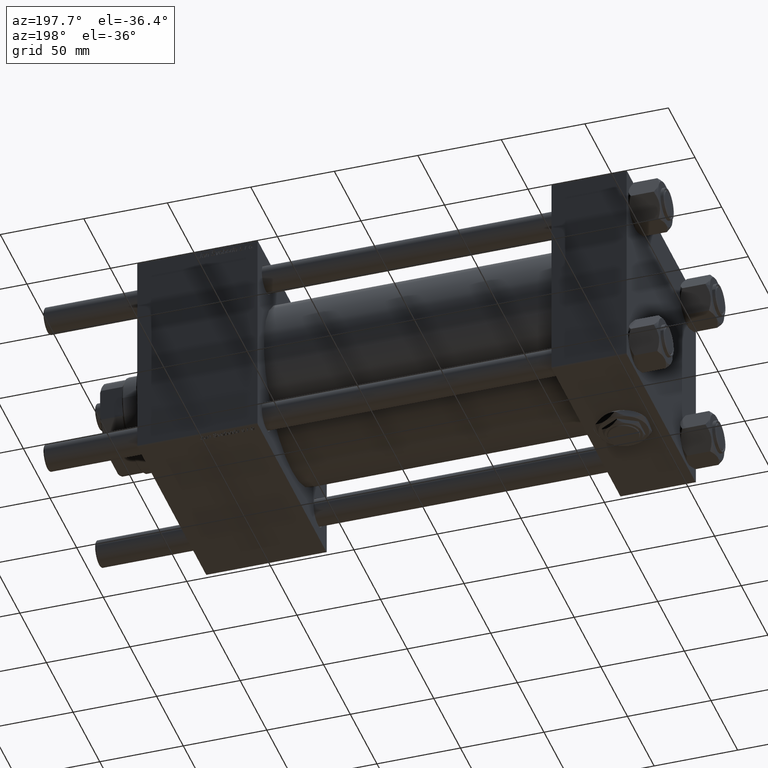
[diagram: clean part render]
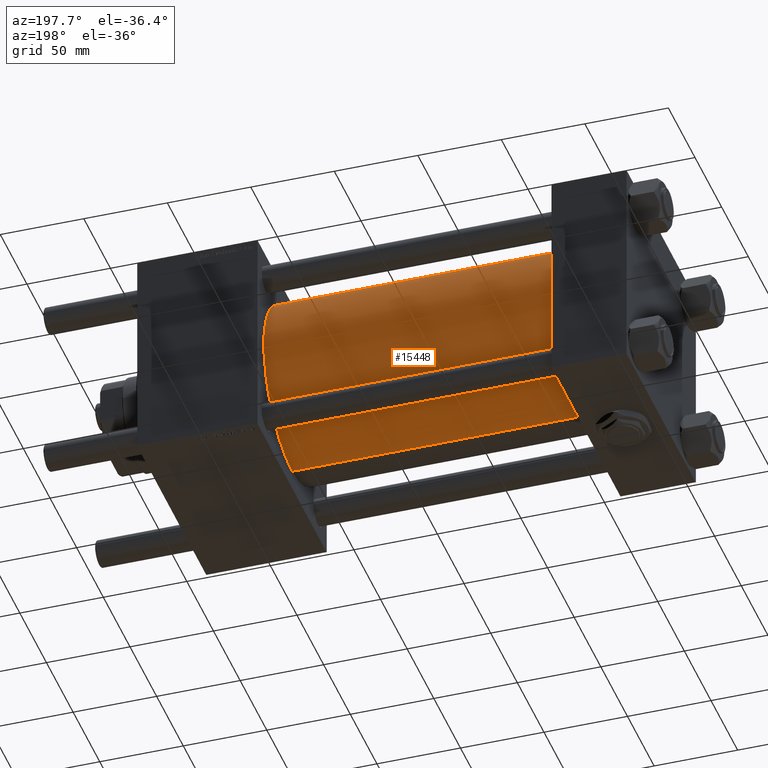
[diagram: same view with one face highlighted and labeled with its STEP entity id]
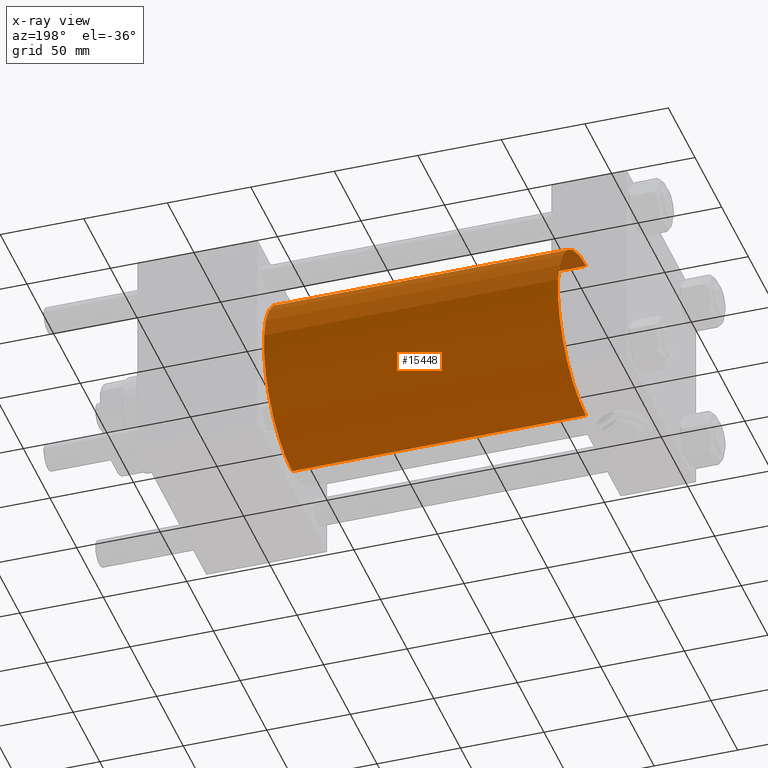
[diagram: x-ray of the same camera — body ghosted, the highlighted face saturated]
A machine part, auxiliary view. The second image highlights one B-rep face of the part: STEP entity #15448.
The next image is the same camera in x-ray: the body ghosted, the highlighted face saturated — about 1% of this face is hidden behind the body in this view.
In plain terms, the highlighted cylindrical surface (partial cylindrical patch) has radius 53 mm, axis along (-1, -0, -0).
Its self-contained STEP definition (entity closure, byte-faithful):
#6232 = AXIS2_PLACEMENT_3D ( 'NONE', #45738, #21503, #39763 ) ;
#8591 = VERTEX_POINT ( 'NONE', #49060 ) ;
#11947 = CIRCLE ( 'NONE', #6232, 53.00000000000000711 ) ;
#13223 = ORIENTED_EDGE ( 'NONE', *, *, #46387, .T. ) ;
#14535 = ORIENTED_EDGE ( 'NONE', *, *, #47569, .F. ) ;
#14728 = CARTESIAN_POINT ( 'NONE',  ( 220.9999999999999716, 3.888542821515762466E-15, -53.00000000000000711 ) ) ;
#15302 = DIRECTION ( 'NONE',  ( -1.000000000000000000, -0.000000000000000000, -0.000000000000000000 ) ) ;
#15388 = DIRECTION ( 'NONE',  ( 1.000000000000000000, -0.000000000000000000, 0.000000000000000000 ) ) ;
#15448 = ADVANCED_FACE ( 'NONE', ( #44872 ), #26597, .T. ) ;
#17641 = DIRECTION ( 'NONE',  ( -1.000000000000000000, -0.000000000000000000, -0.000000000000000000 ) ) ;
#19024 = EDGE_LOOP ( 'NONE', ( #46893, #13223, #51595, #14535 ) ) ;
#20644 = LINE ( 'NONE', #14728, #51549 ) ;
#20885 = CARTESIAN_POINT ( 'NONE',  ( 220.9999999999999716, -2.602085213965210642E-15, 53.00000000000000711 ) ) ;
#21503 = DIRECTION ( 'NONE',  ( 1.000000000000000000, 0.000000000000000000, 0.000000000000000000 ) ) ;
#22423 = DIRECTION ( 'NONE',  ( 0.000000000000000000, 0.000000000000000000, 1.000000000000000000 ) ) ;
#24000 = CARTESIAN_POINT ( 'NONE',  ( 44.99999999999998579, 3.888542821515762466E-15, -53.00000000000000711 ) ) ;
#24636 = DIRECTION ( 'NONE',  ( 0.000000000000000000, 0.000000000000000000, 1.000000000000000000 ) ) ;
#26597 = CYLINDRICAL_SURFACE ( 'NONE', #34576, 53.00000000000000711 ) ;
#30521 = EDGE_CURVE ( 'NONE', #45872, #8591, #11947, .T. ) ;
#34576 = AXIS2_PLACEMENT_3D ( 'NONE', #58654, #17641, #22423 ) ;
#35535 = DIRECTION ( 'NONE',  ( -1.000000000000000000, -0.000000000000000000, -0.000000000000000000 ) ) ;
#35614 = CARTESIAN_POINT ( 'NONE',  ( 220.9999999999999716, 3.888542821515762466E-15, -53.00000000000000711 ) ) ;
#36101 = AXIS2_PLACEMENT_3D ( 'NONE', #56682, #15388, #24636 ) ;
#39763 = DIRECTION ( 'NONE',  ( 0.000000000000000000, 0.000000000000000000, -1.000000000000000000 ) ) ;
#42207 = EDGE_CURVE ( 'NONE', #43410, #51243, #50470, .T. ) ;
#43410 = VERTEX_POINT ( 'NONE', #24000 ) ;
#44872 = FACE_OUTER_BOUND ( 'NONE', #19024, .T. ) ;
#45098 = CARTESIAN_POINT ( 'NONE',  ( 44.99999999999998579, -2.602085213965210642E-15, 53.00000000000000711 ) ) ;
#45738 = CARTESIAN_POINT ( 'NONE',  ( 220.9999999999999716, -2.602085213965210642E-15, 0.000000000000000000 ) ) ;
#45872 = VERTEX_POINT ( 'NONE', #35614 ) ;
#46387 = EDGE_CURVE ( 'NONE', #45872, #43410, #20644, .T. ) ;
#46893 = ORIENTED_EDGE ( 'NONE', *, *, #30521, .F. ) ;
#47569 = EDGE_CURVE ( 'NONE', #8591, #51243, #58597, .T. ) ;
#49060 = CARTESIAN_POINT ( 'NONE',  ( 220.9999999999999716, -2.602085213965210642E-15, 53.00000000000000711 ) ) ;
#50470 = CIRCLE ( 'NONE', #36101, 53.00000000000000711 ) ;
#51243 = VERTEX_POINT ( 'NONE', #45098 ) ;
#51549 = VECTOR ( 'NONE', #15302, 1000.000000000000000 ) ;
#51595 = ORIENTED_EDGE ( 'NONE', *, *, #42207, .T. ) ;
#53513 = VECTOR ( 'NONE', #35535, 1000.000000000000000 ) ;
#56682 = CARTESIAN_POINT ( 'NONE',  ( 44.99999999999998579, -2.602085213965210642E-15, 0.000000000000000000 ) ) ;
#58597 = LINE ( 'NONE', #20885, #53513 ) ;
#58654 = CARTESIAN_POINT ( 'NONE',  ( 220.9999999999999716, -2.602085213965210642E-15, 0.000000000000000000 ) ) ;